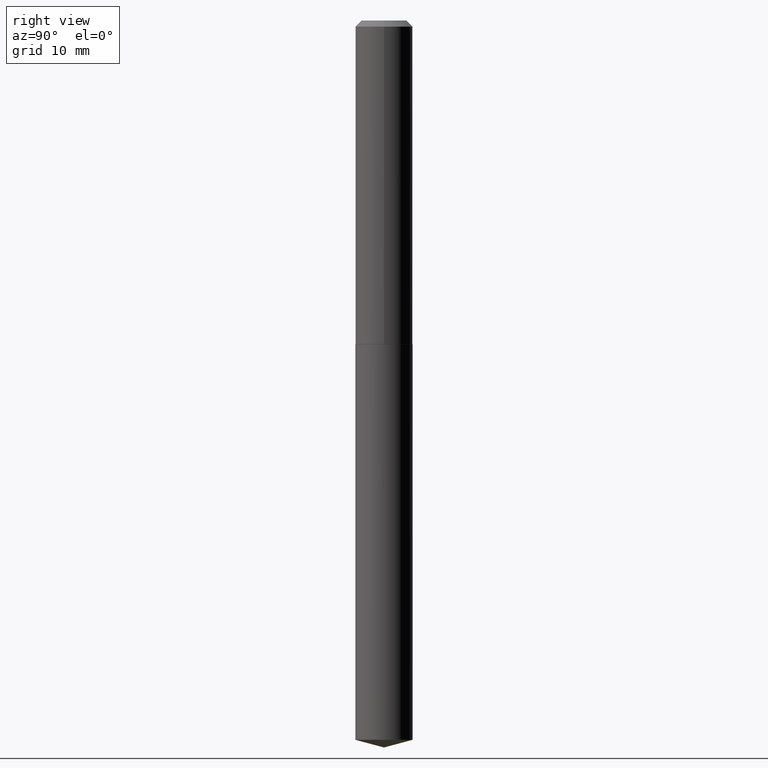
[diagram: clean part render]
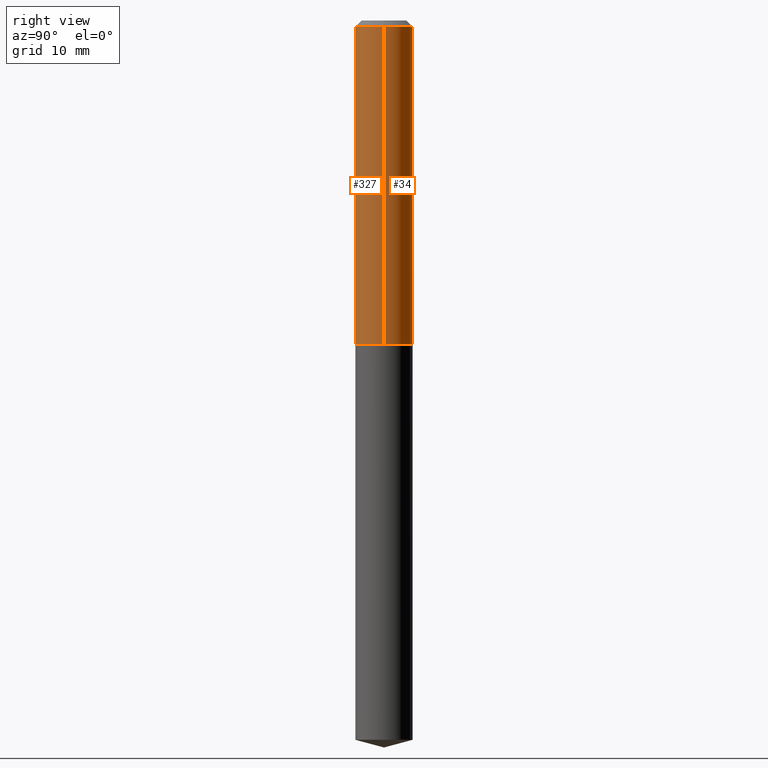
[diagram: same view with one multi-face feature highlighted, each face labeled with its STEP entity id]
A machine part, right view. The highlighted faces form ONE feature: a constant-radius fillet chain: 2 tangent blend faces with common blend radius 3.7465 mm. The faces share edges in the B-rep.
Their STEP definitions:
[1] entity #34 (Cylinder):
#19 = DIRECTION ( 'NONE',  ( -2.445468806185136877E-29, 3.491481338843145188E-15, 1.000000000000000000 ) ) ;
#31 = ORIENTED_EDGE ( 'NONE', *, *, #369, .T. ) ;
#34 = ADVANCED_FACE ( 'NONE', ( #97 ), #238, .T. ) ;
#36 = ORIENTED_EDGE ( 'NONE', *, *, #353, .F. ) ;
#49 = CARTESIAN_POINT ( 'NONE',  ( -0.1475000000000001033, 1.048050535246148508E-15, -7.255429258125991787E-30 ) ) ;
#50 = DIRECTION ( 'NONE',  ( -2.445468806185136597E-29, 3.491481338843145583E-15, 1.000000000000000000 ) ) ;
#56 = CARTESIAN_POINT ( 'NONE',  ( 4.082710171926086683E-29, -5.829028095198632341E-15, -1.669500000000000428 ) ) ;
#59 = CARTESIAN_POINT ( 'NONE',  ( 0.1475000000000002143, -6.859015090157358101E-15, -1.669500000000000428 ) ) ;
#64 = VECTOR ( 'NONE', #230, 39.37007874015748143 ) ;
#68 = CIRCLE ( 'NONE', #239, 0.1475000000000002143 ) ;
#72 = VERTEX_POINT ( 'NONE', #311 ) ;
#97 = FACE_OUTER_BOUND ( 'NONE', #257, .T. ) ;
#106 = CARTESIAN_POINT ( 'NONE',  ( 0.000000000000000000, 0.000000000000000000, 0.000000000000000000 ) ) ;
#109 = LINE ( 'NONE', #205, #64 ) ;
#137 = DIRECTION ( 'NONE',  ( 1.000000000000000000, -6.982962677686265922E-15, 0.000000000000000000 ) ) ;
#176 = DIRECTION ( 'NONE',  ( 1.000000000000000000, -6.982962677686265922E-15, 4.876176775795935232E-29 ) ) ;
#180 = AXIS2_PLACEMENT_3D ( 'NONE', #234, #208, #137 ) ;
#182 = DIRECTION ( 'NONE',  ( -2.445468806185136597E-29, 3.491481338843145583E-15, 1.000000000000000000 ) ) ;
#189 = EDGE_CURVE ( 'NONE', #216, #380, #68, .T. ) ;
#193 = CIRCLE ( 'NONE', #180, 0.1474999999999999922 ) ;
#198 = AXIS2_PLACEMENT_3D ( 'NONE', #106, #50, #176 ) ;
#205 = CARTESIAN_POINT ( 'NONE',  ( 0.1475000000000001033, -1.029986994958724971E-15, 7.192360744299009779E-30 ) ) ;
#208 = DIRECTION ( 'NONE',  ( -2.445468806185136597E-29, 3.491481338843145583E-15, 1.000000000000000000 ) ) ;
#216 = VERTEX_POINT ( 'NONE', #59 ) ;
#225 = ORIENTED_EDGE ( 'NONE', *, *, #189, .T. ) ;
#230 = DIRECTION ( 'NONE',  ( -2.445468806185136877E-29, 3.491481338843145188E-15, 1.000000000000000000 ) ) ;
#234 = CARTESIAN_POINT ( 'NONE',  ( 7.642090019328604414E-31, -1.091087918388490513E-16, -0.03125000000000021511 ) ) ;
#238 = CYLINDRICAL_SURFACE ( 'NONE', #198, 0.1475000000000001033 ) ;
#239 = AXIS2_PLACEMENT_3D ( 'NONE', #56, #182, #296 ) ;
#257 = EDGE_LOOP ( 'NONE', ( #225, #31, #290, #36 ) ) ;
#268 = LINE ( 'NONE', #49, #383 ) ;
#285 = CARTESIAN_POINT ( 'NONE',  ( -0.1475000000000002143, -4.780977559952484031E-15, -1.669500000000000428 ) ) ;
#290 = ORIENTED_EDGE ( 'NONE', *, *, #388, .F. ) ;
#296 = DIRECTION ( 'NONE',  ( 1.000000000000000000, -6.982962677686265922E-15, 0.000000000000000000 ) ) ;
#311 = CARTESIAN_POINT ( 'NONE',  ( 0.1474999999999999922, -1.139095786797573283E-15, -0.03125000000000021511 ) ) ;
#321 = CARTESIAN_POINT ( 'NONE',  ( -0.1474999999999999922, -1.921017908272591621E-15, -0.03125000000000021511 ) ) ;
#353 = EDGE_CURVE ( 'NONE', #216, #72, #109, .T. ) ;
#369 = EDGE_CURVE ( 'NONE', #380, #389, #268, .T. ) ;
#380 = VERTEX_POINT ( 'NONE', #285 ) ;
#383 = VECTOR ( 'NONE', #19, 39.37007874015748143 ) ;
#388 = EDGE_CURVE ( 'NONE', #72, #389, #193, .T. ) ;
#389 = VERTEX_POINT ( 'NONE', #321 ) ;
[2] entity #327 (Cylinder):
#3 = CARTESIAN_POINT ( 'NONE',  ( 0.000000000000000000, 0.000000000000000000, 0.000000000000000000 ) ) ;
#19 = DIRECTION ( 'NONE',  ( -2.445468806185136877E-29, 3.491481338843145188E-15, 1.000000000000000000 ) ) ;
#32 = DIRECTION ( 'NONE',  ( -2.445468806185136597E-29, 3.491481338843145583E-15, 1.000000000000000000 ) ) ;
#49 = CARTESIAN_POINT ( 'NONE',  ( -0.1475000000000001033, 1.048050535246148508E-15, -7.255429258125991787E-30 ) ) ;
#59 = CARTESIAN_POINT ( 'NONE',  ( 0.1475000000000002143, -6.859015090157358101E-15, -1.669500000000000428 ) ) ;
#63 = EDGE_LOOP ( 'NONE', ( #364, #279, #96, #342 ) ) ;
#64 = VECTOR ( 'NONE', #230, 39.37007874015748143 ) ;
#72 = VERTEX_POINT ( 'NONE', #311 ) ;
#73 = AXIS2_PLACEMENT_3D ( 'NONE', #294, #272, #250 ) ;
#94 = AXIS2_PLACEMENT_3D ( 'NONE', #162, #32, #363 ) ;
#96 = ORIENTED_EDGE ( 'NONE', *, *, #353, .T. ) ;
#109 = LINE ( 'NONE', #205, #64 ) ;
#114 = EDGE_CURVE ( 'NONE', #380, #216, #255, .T. ) ;
#128 = DIRECTION ( 'NONE',  ( -2.445468806185136597E-29, 3.491481338843145583E-15, 1.000000000000000000 ) ) ;
#162 = CARTESIAN_POINT ( 'NONE',  ( 7.642090019328604414E-31, -1.091087918388490513E-16, -0.03125000000000021511 ) ) ;
#195 = FACE_OUTER_BOUND ( 'NONE', #63, .T. ) ;
#205 = CARTESIAN_POINT ( 'NONE',  ( 0.1475000000000001033, -1.029986994958724971E-15, 7.192360744299009779E-30 ) ) ;
#215 = EDGE_CURVE ( 'NONE', #389, #72, #366, .T. ) ;
#216 = VERTEX_POINT ( 'NONE', #59 ) ;
#230 = DIRECTION ( 'NONE',  ( -2.445468806185136877E-29, 3.491481338843145188E-15, 1.000000000000000000 ) ) ;
#246 = AXIS2_PLACEMENT_3D ( 'NONE', #3, #128, #283 ) ;
#250 = DIRECTION ( 'NONE',  ( 1.000000000000000000, -6.982962677686265922E-15, 0.000000000000000000 ) ) ;
#255 = CIRCLE ( 'NONE', #73, 0.1475000000000002143 ) ;
#268 = LINE ( 'NONE', #49, #383 ) ;
#272 = DIRECTION ( 'NONE',  ( -2.445468806185136597E-29, 3.491481338843145583E-15, 1.000000000000000000 ) ) ;
#279 = ORIENTED_EDGE ( 'NONE', *, *, #114, .T. ) ;
#283 = DIRECTION ( 'NONE',  ( 1.000000000000000000, -6.982962677686265922E-15, 4.876176775795935232E-29 ) ) ;
#285 = CARTESIAN_POINT ( 'NONE',  ( -0.1475000000000002143, -4.780977559952484031E-15, -1.669500000000000428 ) ) ;
#294 = CARTESIAN_POINT ( 'NONE',  ( 4.082710171926086683E-29, -5.829028095198632341E-15, -1.669500000000000428 ) ) ;
#309 = CYLINDRICAL_SURFACE ( 'NONE', #246, 0.1475000000000001033 ) ;
#311 = CARTESIAN_POINT ( 'NONE',  ( 0.1474999999999999922, -1.139095786797573283E-15, -0.03125000000000021511 ) ) ;
#321 = CARTESIAN_POINT ( 'NONE',  ( -0.1474999999999999922, -1.921017908272591621E-15, -0.03125000000000021511 ) ) ;
#327 = ADVANCED_FACE ( 'NONE', ( #195 ), #309, .T. ) ;
#342 = ORIENTED_EDGE ( 'NONE', *, *, #215, .F. ) ;
#353 = EDGE_CURVE ( 'NONE', #216, #72, #109, .T. ) ;
#363 = DIRECTION ( 'NONE',  ( 1.000000000000000000, -6.982962677686265922E-15, 0.000000000000000000 ) ) ;
#364 = ORIENTED_EDGE ( 'NONE', *, *, #369, .F. ) ;
#366 = CIRCLE ( 'NONE', #94, 0.1474999999999999922 ) ;
#369 = EDGE_CURVE ( 'NONE', #380, #389, #268, .T. ) ;
#380 = VERTEX_POINT ( 'NONE', #285 ) ;
#383 = VECTOR ( 'NONE', #19, 39.37007874015748143 ) ;
#389 = VERTEX_POINT ( 'NONE', #321 ) ;